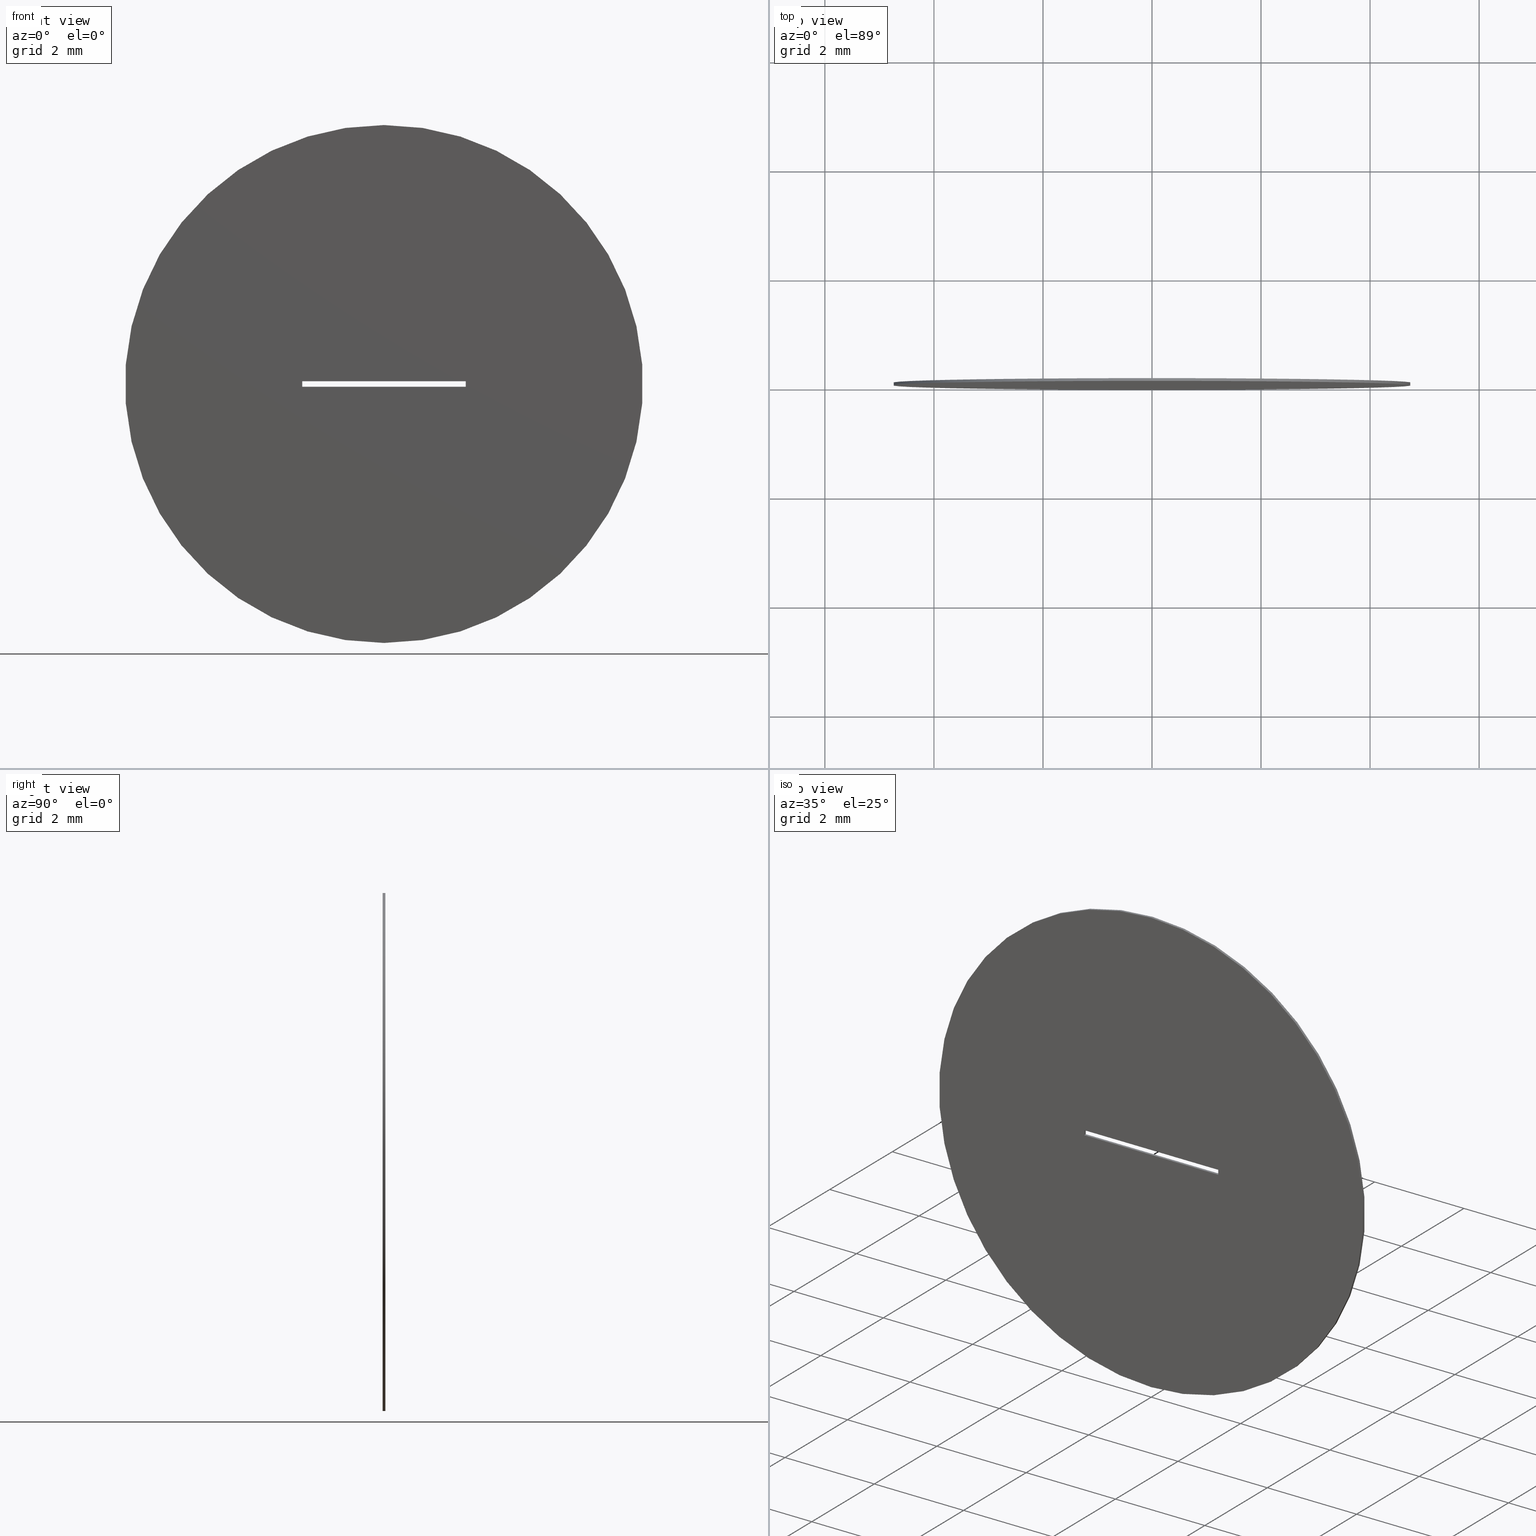
[diagram: canonical four-view strip — front | top / right | iso, engineering-drawing reading convention]
A machine part, canonical four-view strip (front | top / right | iso — engineering-drawing reading convention). The complete STEP part file that produces these views, byte-faithful:
ISO-10303-21;
HEADER;
FILE_DESCRIPTION (( 'STEP AP203' ),
    '1' );
FILE_NAME ('1.5.4.9-ZXG-9.5-100.STEP',
    '2024-05-29T06:49:02',
    ( '' ),
    ( '' ),
    'SwSTEP 2.0',
    'SolidWorks 2021',
    '' );
FILE_SCHEMA (( 'CONFIG_CONTROL_DESIGN' ));
ENDSEC;

DATA;
#1 = CARTESIAN_POINT ( 'NONE',  ( -1.500000000000000000, 0.05000000000000000278, -0.04999999999999999584 ) ) ;
#2 = CC_DESIGN_PERSON_AND_ORGANIZATION_ASSIGNMENT ( #80, #177, ( #187 ) ) ;
#3 = ORGANIZATION ( 'δָ��', 'δָ��', '' ) ;
#4 = ORIENTED_EDGE ( 'NONE', *, *, #11, .F. ) ;
#5 = VERTEX_POINT ( 'NONE', #56 ) ;
#6 = VERTEX_POINT ( 'NONE', #172 ) ;
#7 = EDGE_CURVE ( 'NONE', #290, #6, #280, .T. ) ;
#8 = ORIENTED_EDGE ( 'NONE', *, *, #179, .F. ) ;
#9 = EDGE_LOOP ( 'NONE', ( #96, #263, #169, #195 ) ) ;
#10 = DIRECTION ( 'NONE',  ( 0.000000000000000000, 1.000000000000000000, 0.000000000000000000 ) ) ;
#11 = EDGE_CURVE ( 'NONE', #5, #295, #248, .T. ) ;
#12 = APPROVAL_DATE_TIME ( #247, #158 ) ;
#13 = CARTESIAN_POINT ( 'NONE',  ( 1.500000000000000000, 0.05000000000000000278, -0.04999999999999999584 ) ) ;
#14 = VECTOR ( 'NONE', #99, 1000.000000000000000 ) ;
#15 = CARTESIAN_POINT ( 'NONE',  ( 0.000000000000000000, 0.000000000000000000, 0.000000000000000000 ) ) ;
#16 = APPROVAL ( #211, 'δָ��' ) ;
#17 = CARTESIAN_POINT ( 'NONE',  ( -1.500000000000000000, 0.05000000000000000278, -0.04999999999999999584 ) ) ;
#18 = LINE ( 'NONE', #249, #245 ) ;
#19 = VECTOR ( 'NONE', #153, 1000.000000000000000 ) ;
#20 = DIRECTION ( 'NONE',  ( 0.000000000000000000, 0.000000000000000000, -1.000000000000000000 ) ) ;
#21 = CC_DESIGN_PERSON_AND_ORGANIZATION_ASSIGNMENT ( #161, #307, ( #186 ) ) ;
#22 = COORDINATED_UNIVERSAL_TIME_OFFSET ( 8, 0, .AHEAD. ) ;
#23 = CARTESIAN_POINT ( 'NONE',  ( -1.500000000000000000, 0.05000000000000000278, 0.05000000000000000971 ) ) ;
#24 = AXIS2_PLACEMENT_3D ( 'NONE', #115, #265, #29 ) ;
#25 = CARTESIAN_POINT ( 'NONE',  ( 0.000000000000000000, 0.05000000000000000278, 0.000000000000000000 ) ) ;
#26 = EDGE_CURVE ( 'NONE', #5, #54, #279, .T. ) ;
#27 = FACE_BOUND ( 'NONE', #9, .T. ) ;
#28 = DIRECTION ( 'NONE',  ( -1.000000000000000000, 0.000000000000000000, -0.000000000000000000 ) ) ;
#29 = DIRECTION ( 'NONE',  ( 0.000000000000000000, -0.000000000000000000, 1.000000000000000000 ) ) ;
#30 = ORIENTED_EDGE ( 'NONE', *, *, #73, .F. ) ;
#31 = FACE_OUTER_BOUND ( 'NONE', #243, .T. ) ;
#32 = ORIENTED_EDGE ( 'NONE', *, *, #133, .T. ) ;
#33 = APPROVAL ( #163, 'δָ��' ) ;
#34 = ORIENTED_EDGE ( 'NONE', *, *, #50, .T. ) ;
#35 = VECTOR ( 'NONE', #306, 1000.000000000000000 ) ;
#36 = VECTOR ( 'NONE', #101, 1000.000000000000000 ) ;
#37 = LOCAL_TIME ( 14, 49, 2.000000000000000000, #261 ) ;
#38 = DIRECTION ( 'NONE',  ( 0.000000000000000000, 1.000000000000000000, 0.000000000000000000 ) ) ;
#39 = CARTESIAN_POINT ( 'NONE',  ( -1.500000000000000000, 0.000000000000000000, -0.04999999999999999584 ) ) ;
#40 = CARTESIAN_POINT ( 'NONE',  ( -1.500000000000000000, 0.05000000000000000278, -0.04999999999999999584 ) ) ;
#41 = APPROVAL_PERSON_ORGANIZATION ( #113, #16, #49 ) ;
#42 = CARTESIAN_POINT ( 'NONE',  ( 0.000000000000000000, 0.05000000000000000278, 0.000000000000000000 ) ) ;
#43 = LINE ( 'NONE', #13, #14 ) ;
#44 = PERSON_AND_ORGANIZATION ( #309, #3 ) ;
#45 = AXIS2_PLACEMENT_3D ( 'NONE', #207, #111, #209 ) ;
#46 = EDGE_CURVE ( 'NONE', #149, #75, #176, .T. ) ;
#47 = SHAPE_DEFINITION_REPRESENTATION ( #121, #274 ) ;
#48 =( LENGTH_UNIT ( ) NAMED_UNIT ( * ) SI_UNIT ( .MILLI., .METRE. ) );
#49 = APPROVAL_ROLE ( '' ) ;
#50 = EDGE_CURVE ( 'NONE', #68, #240, #230, .T. ) ;
#51 = PLANE ( 'NONE',  #157 ) ;
#52 = ORIENTED_EDGE ( 'NONE', *, *, #26, .F. ) ;
#53 = CARTESIAN_POINT ( 'NONE',  ( -1.500000000000000000, 0.05000000000000000278, -0.04999999999999999584 ) ) ;
#54 = VERTEX_POINT ( 'NONE', #222 ) ;
#55 = VECTOR ( 'NONE', #138, 1000.000000000000000 ) ;
#56 = CARTESIAN_POINT ( 'NONE',  ( 0.000000000000000000, 0.05000000000000000278, -4.750000000000000000 ) ) ;
#57 = EDGE_CURVE ( 'NONE', #240, #290, #18, .T. ) ;
#58 = CARTESIAN_POINT ( 'NONE',  ( 1.500000000000000000, 0.05000000000000000278, -0.04999999999999999584 ) ) ;
#59 = CARTESIAN_POINT ( 'NONE',  ( 5.817072295949927426E-16, 0.05000000000000000278, 4.750000000000000000 ) ) ;
#60 = PLANE ( 'NONE',  #166 ) ;
#61 = DIRECTION ( 'NONE',  ( -1.000000000000000000, -0.000000000000000000, -0.000000000000000000 ) ) ;
#62 = APPLICATION_CONTEXT ( 'configuration controlled 3d designs of mechanical parts and assemblies' ) ;
#63 = DIRECTION ( 'NONE',  ( 0.000000000000000000, 0.000000000000000000, 1.000000000000000000 ) ) ;
#64 = PERSON_AND_ORGANIZATION_ROLE ( 'classification_officer' ) ;
#65 = LINE ( 'NONE', #112, #241 ) ;
#66 = EDGE_CURVE ( 'NONE', #54, #5, #125, .T. ) ;
#67 = EDGE_CURVE ( 'NONE', #54, #244, #297, .T. ) ;
#68 = VERTEX_POINT ( 'NONE', #301 ) ;
#69 = LINE ( 'NONE', #23, #35 ) ;
#70 =( NAMED_UNIT ( * ) SI_UNIT ( $, .STERADIAN. ) SOLID_ANGLE_UNIT ( ) );
#71 = VECTOR ( 'NONE', #275, 1000.000000000000000 ) ;
#72 = ORIENTED_EDGE ( 'NONE', *, *, #66, .F. ) ;
#73 = EDGE_CURVE ( 'NONE', #75, #240, #204, .T. ) ;
#74 = EDGE_LOOP ( 'NONE', ( #72, #148, #78, #4 ) ) ;
#75 = VERTEX_POINT ( 'NONE', #132 ) ;
#76 = ORIENTED_EDGE ( 'NONE', *, *, #50, .F. ) ;
#77 = EDGE_CURVE ( 'NONE', #244, #295, #100, .T. ) ;
#78 = ORIENTED_EDGE ( 'NONE', *, *, #77, .T. ) ;
#79 = FACE_BOUND ( 'NONE', #190, .T. ) ;
#80 = PERSON_AND_ORGANIZATION ( #309, #3 ) ;
#81 = DIRECTION ( 'NONE',  ( -1.000000000000000000, 0.000000000000000000, 0.000000000000000000 ) ) ;
#82 = PERSON_AND_ORGANIZATION ( #309, #3 ) ;
#83 = CARTESIAN_POINT ( 'NONE',  ( 0.000000000000000000, 0.05000000000000000278, 0.000000000000000000 ) ) ;
#84 = DIRECTION ( 'NONE',  ( -1.000000000000000000, -0.000000000000000000, -0.000000000000000000 ) ) ;
#85 = AXIS2_PLACEMENT_3D ( 'NONE', #15, #134, #128 ) ;
#86 = ADVANCED_FACE ( 'NONE', ( #296, #79 ), #174, .F. ) ;
#87 = CALENDAR_DATE ( 2024, 29, 5 ) ;
#88 = LOCAL_TIME ( 14, 49, 2.000000000000000000, #282 ) ;
#89 = CYLINDRICAL_SURFACE ( 'NONE', #203, 4.750000000000000000 ) ;
#90 = CARTESIAN_POINT ( 'NONE',  ( -1.500000000000000000, 0.000000000000000000, 0.05000000000000000971 ) ) ;
#91 = LOCAL_TIME ( 14, 49, 2.000000000000000000, #22 ) ;
#92 = EDGE_LOOP ( 'NONE', ( #173, #272 ) ) ;
#93 = PRODUCT ( '1.5.4.9-ZXG-9.5-100', '1.5.4.9-ZXG-9.5-100', '', ( #108 ) ) ;
#94 = ORIENTED_EDGE ( 'NONE', *, *, #26, .T. ) ;
#95 = VERTEX_POINT ( 'NONE', #273 ) ;
#96 = ORIENTED_EDGE ( 'NONE', *, *, #133, .F. ) ;
#97 = ORIENTED_EDGE ( 'NONE', *, *, #73, .T. ) ;
#98 = DIRECTION ( 'NONE',  ( 0.000000000000000000, 0.000000000000000000, 1.000000000000000000 ) ) ;
#99 = DIRECTION ( 'NONE',  ( -0.000000000000000000, -0.000000000000000000, -1.000000000000000000 ) ) ;
#100 = CIRCLE ( 'NONE', #210, 4.750000000000000000 ) ;
#101 = DIRECTION ( 'NONE',  ( 0.000000000000000000, 0.000000000000000000, 1.000000000000000000 ) ) ;
#102 = DIRECTION ( 'NONE',  ( -0.000000000000000000, -1.000000000000000000, -0.000000000000000000 ) ) ;
#103 = PERSON_AND_ORGANIZATION ( #309, #3 ) ;
#104 = CC_DESIGN_PERSON_AND_ORGANIZATION_ASSIGNMENT ( #103, #64, ( #269 ) ) ;
#105 = DIRECTION ( 'NONE',  ( 0.000000000000000000, 0.000000000000000000, 1.000000000000000000 ) ) ;
#106 = AXIS2_PLACEMENT_3D ( 'NONE', #142, #258, #28 ) ;
#107 = APPLICATION_PROTOCOL_DEFINITION ( 'international standard', 'config_control_design', 1994, #267 ) ;
#108 = MECHANICAL_CONTEXT ( 'NONE', #62, 'mechanical' ) ;
#109 = DATE_AND_TIME ( #183, #91 ) ;
#110 = DATE_AND_TIME ( #87, #37 ) ;
#111 = DIRECTION ( 'NONE',  ( 0.000000000000000000, 1.000000000000000000, 0.000000000000000000 ) ) ;
#112 = CARTESIAN_POINT ( 'NONE',  ( 1.500000000000000000, 0.05000000000000000278, 0.05000000000000000971 ) ) ;
#113 = PERSON_AND_ORGANIZATION ( #309, #3 ) ;
#114 = CC_DESIGN_PERSON_AND_ORGANIZATION_ASSIGNMENT ( #233, #305, ( #93 ) ) ;
#115 = CARTESIAN_POINT ( 'NONE',  ( 0.000000000000000000, 0.05000000000000000278, 0.000000000000000000 ) ) ;
#116 = PLANE ( 'NONE',  #24 ) ;
#117 = EDGE_LOOP ( 'NONE', ( #268, #52, #191, #217 ) ) ;
#118 = DIRECTION ( 'NONE',  ( 0.000000000000000000, 0.000000000000000000, 1.000000000000000000 ) ) ;
#119 = CC_DESIGN_APPROVAL ( #33, ( #186 ) ) ;
#120 = ORIENTED_EDGE ( 'NONE', *, *, #308, .T. ) ;
#121 = PRODUCT_DEFINITION_SHAPE ( 'NONE', 'NONE',  #186 ) ;
#122 = ORIENTED_EDGE ( 'NONE', *, *, #206, .T. ) ;
#123 = CC_DESIGN_DATE_AND_TIME_ASSIGNMENT ( #199, #224, ( #186 ) ) ;
#124 = ORIENTED_EDGE ( 'NONE', *, *, #7, .T. ) ;
#125 = CIRCLE ( 'NONE', #150, 4.750000000000000000 ) ;
#126 = VERTEX_POINT ( 'NONE', #156 ) ;
#127 = DIRECTION ( 'NONE',  ( -0.000000000000000000, -1.000000000000000000, -0.000000000000000000 ) ) ;
#128 = DIRECTION ( 'NONE',  ( 0.000000000000000000, -0.000000000000000000, 1.000000000000000000 ) ) ;
#129 = CARTESIAN_POINT ( 'NONE',  ( 1.500000000000000000, 0.05000000000000000278, -0.04999999999999999584 ) ) ;
#130 = LOCAL_TIME ( 14, 49, 2.000000000000000000, #302 ) ;
#131 = CALENDAR_DATE ( 2024, 29, 5 ) ;
#132 = CARTESIAN_POINT ( 'NONE',  ( 1.500000000000000000, 0.000000000000000000, -0.04999999999999999584 ) ) ;
#133 = EDGE_CURVE ( 'NONE', #149, #68, #253, .T. ) ;
#134 = DIRECTION ( 'NONE',  ( 0.000000000000000000, 1.000000000000000000, 0.000000000000000000 ) ) ;
#135 = FACE_OUTER_BOUND ( 'NONE', #117, .T. ) ;
#136 = AXIS2_PLACEMENT_3D ( 'NONE', #1, #118, #214 ) ;
#137 = CARTESIAN_POINT ( 'NONE',  ( -1.500000000000000000, 0.000000000000000000, -0.04999999999999999584 ) ) ;
#138 = DIRECTION ( 'NONE',  ( -0.000000000000000000, -1.000000000000000000, -0.000000000000000000 ) ) ;
#139 = ADVANCED_FACE ( 'NONE', ( #223 ), #60, .T. ) ;
#140 = CARTESIAN_POINT ( 'NONE',  ( 0.000000000000000000, 0.000000000000000000, -4.750000000000000000 ) ) ;
#141 = FACE_OUTER_BOUND ( 'NONE', #291, .T. ) ;
#142 = CARTESIAN_POINT ( 'NONE',  ( -1.500000000000000000, 0.05000000000000000278, 0.05000000000000000971 ) ) ;
#143 = EDGE_CURVE ( 'NONE', #126, #149, #43, .T. ) ;
#144 = ORIENTED_EDGE ( 'NONE', *, *, #179, .T. ) ;
#145 = ORIENTED_EDGE ( 'NONE', *, *, #235, .F. ) ;
#146 = APPROVAL_PERSON_ORGANIZATION ( #298, #158, #254 ) ;
#147 = ORIENTED_EDGE ( 'NONE', *, *, #46, .F. ) ;
#148 = ORIENTED_EDGE ( 'NONE', *, *, #67, .T. ) ;
#149 = VERTEX_POINT ( 'NONE', #228 ) ;
#150 = AXIS2_PLACEMENT_3D ( 'NONE', #42, #10, #182 ) ;
#151 = CARTESIAN_POINT ( 'NONE',  ( 0.000000000000000000, 0.05000000000000000278, 0.000000000000000000 ) ) ;
#152 = CC_DESIGN_DATE_AND_TIME_ASSIGNMENT ( #165, #164, ( #269 ) ) ;
#153 = DIRECTION ( 'NONE',  ( -0.000000000000000000, -1.000000000000000000, -0.000000000000000000 ) ) ;
#154 = SECURITY_CLASSIFICATION_LEVEL ( 'unclassified' ) ;
#155 = LINE ( 'NONE', #40, #36 ) ;
#156 = CARTESIAN_POINT ( 'NONE',  ( 1.500000000000000000, 0.05000000000000000278, 0.05000000000000000971 ) ) ;
#157 = AXIS2_PLACEMENT_3D ( 'NONE', #53, #168, #262 ) ;
#158 = APPROVAL ( #300, 'δָ��' ) ;
#159 = DIRECTION ( 'NONE',  ( 0.000000000000000000, 1.000000000000000000, 0.000000000000000000 ) ) ;
#160 = PLANE ( 'NONE',  #106 ) ;
#161 = PERSON_AND_ORGANIZATION ( #309, #3 ) ;
#162 = CARTESIAN_POINT ( 'NONE',  ( -1.500000000000000000, 0.05000000000000000278, 0.05000000000000000971 ) ) ;
#163 = APPROVAL_STATUS ( 'not_yet_approved' ) ;
#164 = DATE_TIME_ROLE ( 'classification_date' ) ;
#165 = DATE_AND_TIME ( #232, #130 ) ;
#166 = AXIS2_PLACEMENT_3D ( 'NONE', #129, #81, #63 ) ;
#167 = CC_DESIGN_SECURITY_CLASSIFICATION ( #269, ( #187 ) ) ;
#168 = DIRECTION ( 'NONE',  ( 1.000000000000000000, 0.000000000000000000, 0.000000000000000000 ) ) ;
#169 = ORIENTED_EDGE ( 'NONE', *, *, #206, .F. ) ;
#170 = ORIENTED_EDGE ( 'NONE', *, *, #46, .T. ) ;
#171 = VECTOR ( 'NONE', #304, 1000.000000000000000 ) ;
#172 = CARTESIAN_POINT ( 'NONE',  ( 1.500000000000000000, 0.000000000000000000, 0.05000000000000000971 ) ) ;
#173 = ORIENTED_EDGE ( 'NONE', *, *, #250, .F. ) ;
#174 = PLANE ( 'NONE',  #85 ) ;
#175 = VECTOR ( 'NONE', #202, 1000.000000000000000 ) ;
#176 = LINE ( 'NONE', #58, #71 ) ;
#177 = PERSON_AND_ORGANIZATION_ROLE ( 'creator' ) ;
#178 = DIRECTION ( 'NONE',  ( 0.000000000000000000, 0.000000000000000000, 1.000000000000000000 ) ) ;
#179 = EDGE_CURVE ( 'NONE', #6, #75, #198, .T. ) ;
#180 = DIRECTION ( 'NONE',  ( -0.000000000000000000, -1.000000000000000000, -0.000000000000000000 ) ) ;
#181 = PERSON_AND_ORGANIZATION_ROLE ( 'design_supplier' ) ;
#182 = DIRECTION ( 'NONE',  ( 0.000000000000000000, 0.000000000000000000, 1.000000000000000000 ) ) ;
#183 = CALENDAR_DATE ( 2024, 29, 5 ) ;
#184 = LINE ( 'NONE', #162, #55 ) ;
#185 = DIRECTION ( 'NONE',  ( -0.000000000000000000, -1.000000000000000000, -0.000000000000000000 ) ) ;
#186 = PRODUCT_DEFINITION ( 'δ֪', '', #187, #239 ) ;
#187 = PRODUCT_DEFINITION_FORMATION_WITH_SPECIFIED_SOURCE ( '�κ�', '', #93, .NOT_KNOWN. ) ;
#188 = EDGE_CURVE ( 'NONE', #68, #95, #155, .T. ) ;
#189 = CARTESIAN_POINT ( 'NONE',  ( 0.000000000000000000, 0.000000000000000000, 0.000000000000000000 ) ) ;
#190 = EDGE_LOOP ( 'NONE', ( #144, #97, #219, #124 ) ) ;
#191 = ORIENTED_EDGE ( 'NONE', *, *, #11, .T. ) ;
#192 = ADVANCED_FACE ( 'NONE', ( #200 ), #299, .T. ) ;
#193 = ORIENTED_EDGE ( 'NONE', *, *, #57, .F. ) ;
#194 = AXIS2_PLACEMENT_3D ( 'NONE', #189, #256, #285 ) ;
#195 = ORIENTED_EDGE ( 'NONE', *, *, #188, .F. ) ;
#196 = EDGE_LOOP ( 'NONE', ( #8, #221, #215, #170 ) ) ;
#197 = CARTESIAN_POINT ( 'NONE',  ( 0.000000000000000000, 0.000000000000000000, 0.000000000000000000 ) ) ;
#198 = LINE ( 'NONE', #277, #171 ) ;
#199 = DATE_AND_TIME ( #131, #216 ) ;
#200 = FACE_OUTER_BOUND ( 'NONE', #74, .T. ) ;
#201 = ADVANCED_FACE ( 'NONE', ( #135 ), #89, .T. ) ;
#202 = DIRECTION ( 'NONE',  ( 1.000000000000000000, 0.000000000000000000, 0.000000000000000000 ) ) ;
#203 = AXIS2_PLACEMENT_3D ( 'NONE', #25, #284, #20 ) ;
#204 = LINE ( 'NONE', #39, #293 ) ;
#205 = APPROVAL_ROLE ( '' ) ;
#206 = EDGE_CURVE ( 'NONE', #95, #126, #69, .T. ) ;
#207 = CARTESIAN_POINT ( 'NONE',  ( 0.000000000000000000, 0.000000000000000000, 0.000000000000000000 ) ) ;
#208 = APPROVAL_DATE_TIME ( #110, #16 ) ;
#209 = DIRECTION ( 'NONE',  ( 0.000000000000000000, 0.000000000000000000, 1.000000000000000000 ) ) ;
#210 = AXIS2_PLACEMENT_3D ( 'NONE', #197, #159, #98 ) ;
#211 = APPROVAL_STATUS ( 'not_yet_approved' ) ;
#212 = CC_DESIGN_APPROVAL ( #16, ( #269 ) ) ;
#213 = PRODUCT_RELATED_PRODUCT_CATEGORY ( 'detail', '', ( #93 ) ) ;
#214 = DIRECTION ( 'NONE',  ( 1.000000000000000000, 0.000000000000000000, -0.000000000000000000 ) ) ;
#215 = ORIENTED_EDGE ( 'NONE', *, *, #143, .T. ) ;
#216 = LOCAL_TIME ( 14, 49, 2.000000000000000000, #229 ) ;
#217 = ORIENTED_EDGE ( 'NONE', *, *, #250, .T. ) ;
#218 = ORIENTED_EDGE ( 'NONE', *, *, #235, .T. ) ;
#219 = ORIENTED_EDGE ( 'NONE', *, *, #57, .T. ) ;
#220 = VECTOR ( 'NONE', #127, 1000.000000000000000 ) ;
#221 = ORIENTED_EDGE ( 'NONE', *, *, #308, .F. ) ;
#222 = CARTESIAN_POINT ( 'NONE',  ( 5.817072295949927426E-16, 0.05000000000000000278, 4.750000000000000000 ) ) ;
#223 = FACE_OUTER_BOUND ( 'NONE', #196, .T. ) ;
#224 = DATE_TIME_ROLE ( 'creation_date' ) ;
#225 = CARTESIAN_POINT ( 'NONE',  ( 0.000000000000000000, 0.05000000000000000278, -4.750000000000000000 ) ) ;
#226 = ADVANCED_FACE ( 'NONE', ( #311 ), #160, .T. ) ;
#227 = CALENDAR_DATE ( 2024, 29, 5 ) ;
#228 = CARTESIAN_POINT ( 'NONE',  ( 1.500000000000000000, 0.05000000000000000278, -0.04999999999999999584 ) ) ;
#229 = COORDINATED_UNIVERSAL_TIME_OFFSET ( 8, 0, .AHEAD. ) ;
#230 = LINE ( 'NONE', #17, #220 ) ;
#231 = APPROVAL_PERSON_ORGANIZATION ( #44, #33, #205 ) ;
#232 = CALENDAR_DATE ( 2024, 29, 5 ) ;
#233 = PERSON_AND_ORGANIZATION ( #309, #3 ) ;
#234 = CARTESIAN_POINT ( 'NONE',  ( 5.817072295949927426E-16, 0.000000000000000000, 4.750000000000000000 ) ) ;
#235 = EDGE_CURVE ( 'NONE', #95, #290, #184, .T. ) ;
#236 = CC_DESIGN_APPROVAL ( #158, ( #187 ) ) ;
#237 =( NAMED_UNIT ( * ) PLANE_ANGLE_UNIT ( ) SI_UNIT ( $, .RADIAN. ) );
#238 = FACE_OUTER_BOUND ( 'NONE', #266, .T. ) ;
#239 = DESIGN_CONTEXT ( 'detailed design', #267, 'design' ) ;
#240 = VERTEX_POINT ( 'NONE', #137 ) ;
#241 = VECTOR ( 'NONE', #185, 1000.000000000000000 ) ;
#242 = ORIENTED_EDGE ( 'NONE', *, *, #7, .F. ) ;
#243 = EDGE_LOOP ( 'NONE', ( #193, #76, #292, #218 ) ) ;
#244 = VERTEX_POINT ( 'NONE', #234 ) ;
#245 = VECTOR ( 'NONE', #105, 1000.000000000000000 ) ;
#246 = CARTESIAN_POINT ( 'NONE',  ( -1.500000000000000000, 0.000000000000000000, 0.05000000000000000971 ) ) ;
#247 = DATE_AND_TIME ( #227, #88 ) ;
#248 = LINE ( 'NONE', #225, #259 ) ;
#249 = CARTESIAN_POINT ( 'NONE',  ( -1.500000000000000000, 0.000000000000000000, -0.04999999999999999584 ) ) ;
#250 = EDGE_CURVE ( 'NONE', #295, #244, #288, .T. ) ;
#251 = AXIS2_PLACEMENT_3D ( 'NONE', #151, #38, #178 ) ;
#252 = CARTESIAN_POINT ( 'NONE',  ( -1.500000000000000000, 0.05000000000000000278, -0.04999999999999999584 ) ) ;
#253 = LINE ( 'NONE', #252, #303 ) ;
#254 = APPROVAL_ROLE ( '' ) ;
#255 = CLOSED_SHELL ( 'NONE', ( #192, #271, #86, #201, #139, #289, #264, #226 ) ) ;
#256 = DIRECTION ( 'NONE',  ( 0.000000000000000000, 0.000000000000000000, 1.000000000000000000 ) ) ;
#257 = MANIFOLD_SOLID_BREP ( '͹̨-����1', #255 ) ;
#258 = DIRECTION ( 'NONE',  ( 0.000000000000000000, 0.000000000000000000, -1.000000000000000000 ) ) ;
#259 = VECTOR ( 'NONE', #102, 1000.000000000000000 ) ;
#260 = APPLICATION_PROTOCOL_DEFINITION ( 'international standard', 'config_control_design', 1994, #62 ) ;
#261 = COORDINATED_UNIVERSAL_TIME_OFFSET ( 8, 0, .AHEAD. ) ;
#262 = DIRECTION ( 'NONE',  ( 0.000000000000000000, 0.000000000000000000, -1.000000000000000000 ) ) ;
#263 = ORIENTED_EDGE ( 'NONE', *, *, #143, .F. ) ;
#264 = ADVANCED_FACE ( 'NONE', ( #31 ), #51, .T. ) ;
#265 = DIRECTION ( 'NONE',  ( 0.000000000000000000, 1.000000000000000000, 0.000000000000000000 ) ) ;
#266 = EDGE_LOOP ( 'NONE', ( #94, #270 ) ) ;
#267 = APPLICATION_CONTEXT ( 'configuration controlled 3d designs of mechanical parts and assemblies' ) ;
#268 = ORIENTED_EDGE ( 'NONE', *, *, #67, .F. ) ;
#269 = SECURITY_CLASSIFICATION ( '', '', #154 ) ;
#270 = ORIENTED_EDGE ( 'NONE', *, *, #66, .T. ) ;
#271 = ADVANCED_FACE ( 'NONE', ( #238, #27 ), #116, .T. ) ;
#272 = ORIENTED_EDGE ( 'NONE', *, *, #77, .F. ) ;
#273 = CARTESIAN_POINT ( 'NONE',  ( -1.500000000000000000, 0.05000000000000000278, 0.05000000000000000971 ) ) ;
#274 = ADVANCED_BREP_SHAPE_REPRESENTATION ( '1.5.4.9-ZXG-9.5-100', ( #257, #194 ), #310 ) ;
#275 = DIRECTION ( 'NONE',  ( -0.000000000000000000, -1.000000000000000000, -0.000000000000000000 ) ) ;
#276 = CC_DESIGN_PERSON_AND_ORGANIZATION_ASSIGNMENT ( #82, #181, ( #187 ) ) ;
#277 = CARTESIAN_POINT ( 'NONE',  ( 1.500000000000000000, 0.000000000000000000, -0.04999999999999999584 ) ) ;
#278 = DIRECTION ( 'NONE',  ( 0.000000000000000000, 0.000000000000000000, -1.000000000000000000 ) ) ;
#279 = CIRCLE ( 'NONE', #251, 4.750000000000000000 ) ;
#280 = LINE ( 'NONE', #246, #175 ) ;
#281 = APPROVAL_DATE_TIME ( #109, #33 ) ;
#282 = COORDINATED_UNIVERSAL_TIME_OFFSET ( 8, 0, .AHEAD. ) ;
#283 = AXIS2_PLACEMENT_3D ( 'NONE', #83, #180, #278 ) ;
#284 = DIRECTION ( 'NONE',  ( -0.000000000000000000, -1.000000000000000000, -0.000000000000000000 ) ) ;
#285 = DIRECTION ( 'NONE',  ( 1.000000000000000000, 0.000000000000000000, 0.000000000000000000 ) ) ;
#286 = PLANE ( 'NONE',  #136 ) ;
#287 = UNCERTAINTY_MEASURE_WITH_UNIT (LENGTH_MEASURE( 1.000000000000000082E-05 ), #48, 'distance_accuracy_value', 'NONE');
#288 = CIRCLE ( 'NONE', #45, 4.750000000000000000 ) ;
#289 = ADVANCED_FACE ( 'NONE', ( #141 ), #286, .T. ) ;
#290 = VERTEX_POINT ( 'NONE', #90 ) ;
#291 = EDGE_LOOP ( 'NONE', ( #30, #147, #32, #34 ) ) ;
#292 = ORIENTED_EDGE ( 'NONE', *, *, #188, .T. ) ;
#293 = VECTOR ( 'NONE', #84, 1000.000000000000000 ) ;
#294 = EDGE_LOOP ( 'NONE', ( #242, #145, #122, #120 ) ) ;
#295 = VERTEX_POINT ( 'NONE', #140 ) ;
#296 = FACE_OUTER_BOUND ( 'NONE', #92, .T. ) ;
#297 = LINE ( 'NONE', #59, #19 ) ;
#298 = PERSON_AND_ORGANIZATION ( #309, #3 ) ;
#299 = CYLINDRICAL_SURFACE ( 'NONE', #283, 4.750000000000000000 ) ;
#300 = APPROVAL_STATUS ( 'not_yet_approved' ) ;
#301 = CARTESIAN_POINT ( 'NONE',  ( -1.500000000000000000, 0.05000000000000000278, -0.04999999999999999584 ) ) ;
#302 = COORDINATED_UNIVERSAL_TIME_OFFSET ( 8, 0, .AHEAD. ) ;
#303 = VECTOR ( 'NONE', #61, 1000.000000000000000 ) ;
#304 = DIRECTION ( 'NONE',  ( -0.000000000000000000, -0.000000000000000000, -1.000000000000000000 ) ) ;
#305 = PERSON_AND_ORGANIZATION_ROLE ( 'design_owner' ) ;
#306 = DIRECTION ( 'NONE',  ( 1.000000000000000000, 0.000000000000000000, 0.000000000000000000 ) ) ;
#307 = PERSON_AND_ORGANIZATION_ROLE ( 'creator' ) ;
#308 = EDGE_CURVE ( 'NONE', #126, #6, #65, .T. ) ;
#309 = PERSON ( 'δָ��', 'δָ��', 'δָ��', ('δָ��'), ('δָ��'), ('δָ��') ) ;
#310 =( GEOMETRIC_REPRESENTATION_CONTEXT ( 3 ) GLOBAL_UNCERTAINTY_ASSIGNED_CONTEXT ( ( #287 ) ) GLOBAL_UNIT_ASSIGNED_CONTEXT ( ( #48, #237, #70 ) ) REPRESENTATION_CONTEXT ( 'NONE', 'WORKASPACE' ) );
#311 = FACE_OUTER_BOUND ( 'NONE', #294, .T. ) ;
ENDSEC;
END-ISO-10303-21;
